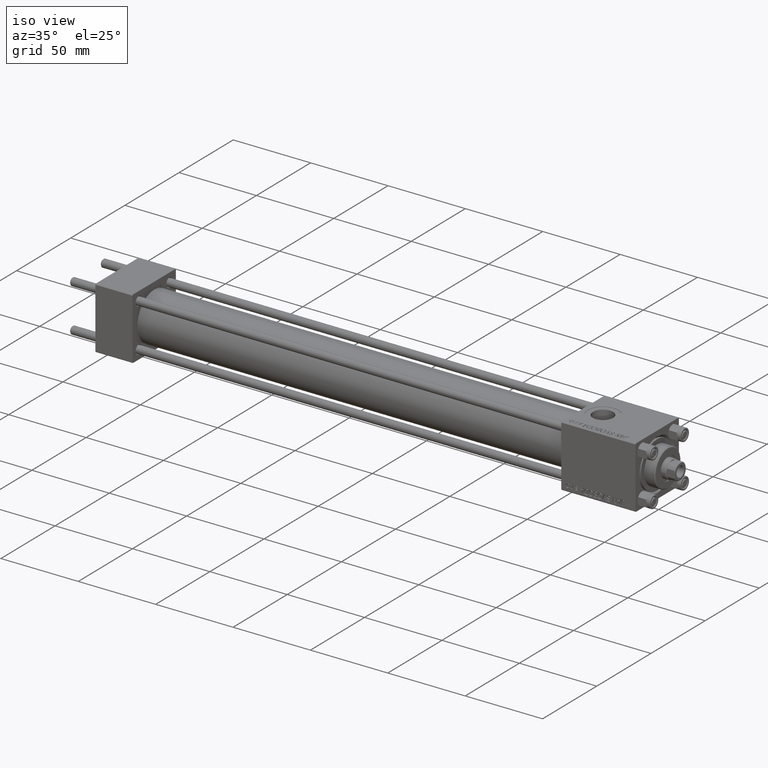
[diagram: clean part render]
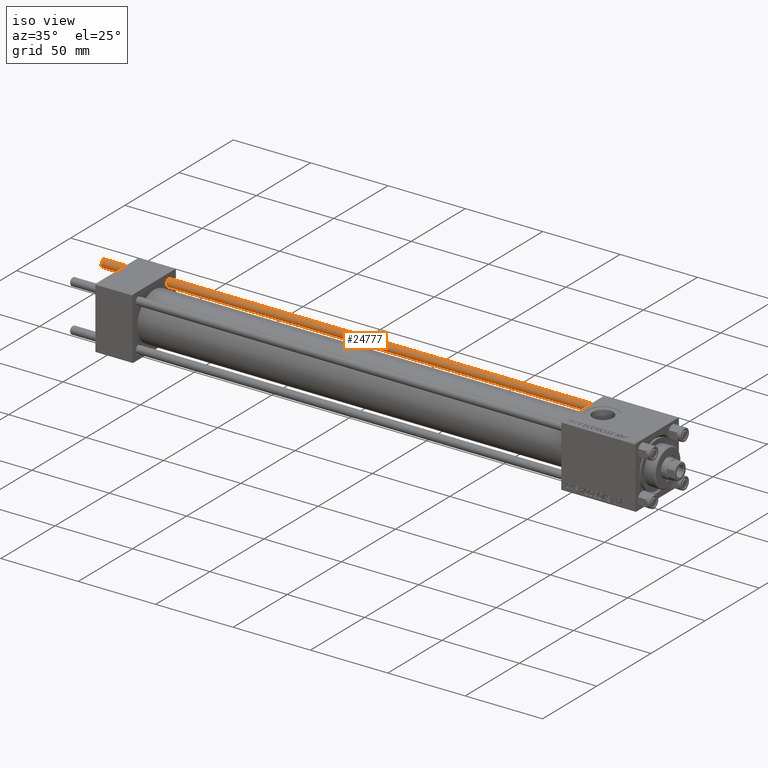
[diagram: same view with one face highlighted and labeled with its STEP entity id]
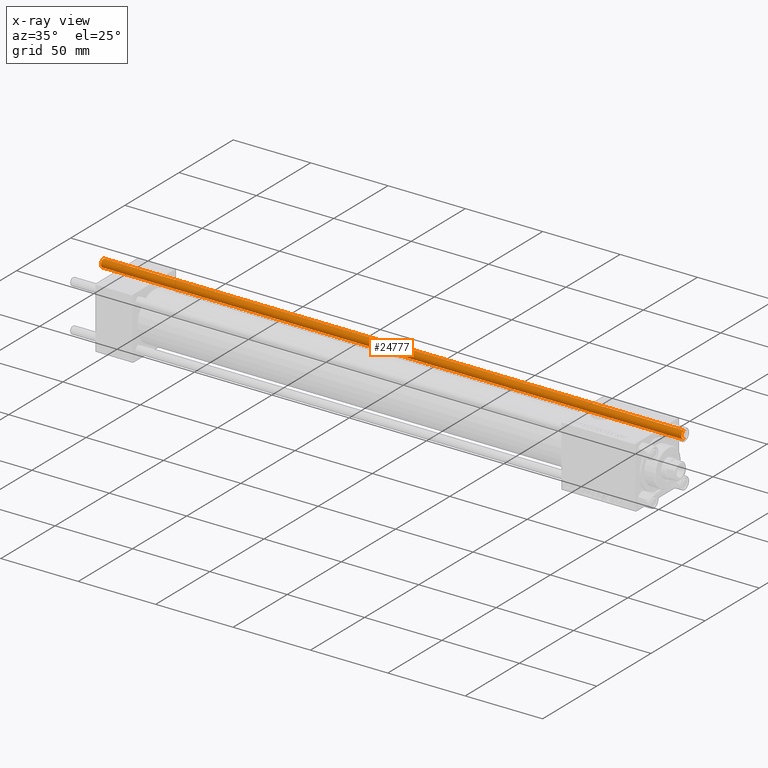
[diagram: x-ray of the same camera — body ghosted, the highlighted face saturated]
A machine part, iso view. The second image highlights one B-rep face of the part: STEP entity #24777.
The next image is the same camera in x-ray: the body ghosted, the highlighted face saturated — about 0% of this face is hidden behind the body in this view.
In plain terms, the highlighted cylindrical surface (edge-blend (fillet) strip) has radius 2.5 mm, axis along (-1, -0, -0).
Its self-contained STEP definition (entity closure, byte-faithful):
#9291 = VERTEX_POINT ( 'NONE', #12544 ) ;
#9445 = EDGE_CURVE ( 'NONE', #34194, #27214, #9513, .T. ) ;
#9513 = LINE ( 'NONE', #40209, #12189 ) ;
#10211 = EDGE_CURVE ( 'NONE', #9291, #27214, #21139, .T. ) ;
#11517 = AXIS2_PLACEMENT_3D ( 'NONE', #18224, #18467, #26275 ) ;
#12189 = VECTOR ( 'NONE', #21081, 1000.000000000000000 ) ;
#12544 = CARTESIAN_POINT ( 'NONE',  ( -2.500000000000000000, 0.000000000000000000, 0.4999999999999449329 ) ) ;
#13043 = DIRECTION ( 'NONE',  ( -0.000000000000000000, -0.000000000000000000, 1.000000000000000000 ) ) ;
#13539 = DIRECTION ( 'NONE',  ( 1.000000000000000000, 0.000000000000000000, 0.000000000000000000 ) ) ;
#14337 = ORIENTED_EDGE ( 'NONE', *, *, #10211, .T. ) ;
#16126 = CARTESIAN_POINT ( 'NONE',  ( -2.500000000000000000, 0.000000000000000000, 376.0000000000000000 ) ) ;
#17320 = CARTESIAN_POINT ( 'NONE',  ( 0.000000000000000000, 0.000000000000000000, 0.4999999999999449329 ) ) ;
#17947 = AXIS2_PLACEMENT_3D ( 'NONE', #17320, #13043, #13539 ) ;
#18224 = CARTESIAN_POINT ( 'NONE',  ( 0.000000000000000000, 0.000000000000000000, 376.0000000000000000 ) ) ;
#18467 = DIRECTION ( 'NONE',  ( -0.000000000000000000, -0.000000000000000000, -1.000000000000000000 ) ) ;
#21081 = DIRECTION ( 'NONE',  ( -0.000000000000000000, -0.000000000000000000, -1.000000000000000000 ) ) ;
#21139 = CIRCLE ( 'NONE', #17947, 2.500000000000000000 ) ;
#21157 = ORIENTED_EDGE ( 'NONE', *, *, #9445, .F. ) ;
#21830 = EDGE_CURVE ( 'NONE', #34194, #25066, #27532, .T. ) ;
#23766 = ORIENTED_EDGE ( 'NONE', *, *, #32080, .T. ) ;
#24777 = ADVANCED_FACE ( 'NONE', ( #37356 ), #33583, .T. ) ;
#25066 = VERTEX_POINT ( 'NONE', #30690 ) ;
#26049 = CARTESIAN_POINT ( 'NONE',  ( 0.000000000000000000, 0.000000000000000000, 375.5000000000000568 ) ) ;
#26127 = VECTOR ( 'NONE', #46361, 1000.000000000000000 ) ;
#26275 = DIRECTION ( 'NONE',  ( -1.000000000000000000, 0.000000000000000000, 0.000000000000000000 ) ) ;
#27214 = VERTEX_POINT ( 'NONE', #46700 ) ;
#27532 = CIRCLE ( 'NONE', #46025, 2.500000000000000000 ) ;
#29043 = CARTESIAN_POINT ( 'NONE',  ( 2.500000000000000000, 3.061616997868383141E-16, 375.5000000000000568 ) ) ;
#29087 = DIRECTION ( 'NONE',  ( 0.000000000000000000, 0.000000000000000000, -1.000000000000000000 ) ) ;
#30690 = CARTESIAN_POINT ( 'NONE',  ( -2.500000000000000000, 0.000000000000000000, 375.5000000000000568 ) ) ;
#30995 = LINE ( 'NONE', #16126, #26127 ) ;
#32080 = EDGE_CURVE ( 'NONE', #25066, #9291, #30995, .T. ) ;
#33362 = DIRECTION ( 'NONE',  ( 1.000000000000000000, 0.000000000000000000, 0.000000000000000000 ) ) ;
#33583 = CYLINDRICAL_SURFACE ( 'NONE', #11517, 2.500000000000000000 ) ;
#34194 = VERTEX_POINT ( 'NONE', #29043 ) ;
#36662 = ORIENTED_EDGE ( 'NONE', *, *, #21830, .T. ) ;
#37356 = FACE_OUTER_BOUND ( 'NONE', #39999, .T. ) ;
#39999 = EDGE_LOOP ( 'NONE', ( #21157, #36662, #23766, #14337 ) ) ;
#40209 = CARTESIAN_POINT ( 'NONE',  ( 2.500000000000000000, 3.061616997868383141E-16, 376.0000000000000000 ) ) ;
#46025 = AXIS2_PLACEMENT_3D ( 'NONE', #26049, #29087, #33362 ) ;
#46361 = DIRECTION ( 'NONE',  ( -0.000000000000000000, -0.000000000000000000, -1.000000000000000000 ) ) ;
#46700 = CARTESIAN_POINT ( 'NONE',  ( 2.500000000000000000, 3.061616997868383141E-16, 0.4999999999999449329 ) ) ;